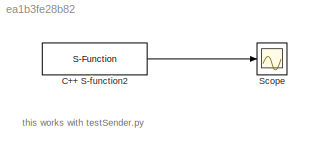
MODEL slx_ea1b3fe28b82
KIND model
BLOCK [S-Function] C++ S-function2
  EnableBusSupport = off
  FunctionName = yarpReadVars_sfun
  Parameters = '/testSender', '/sim/in','var1'
  Ports = [0, 1]
BLOCK [Scope] Scope
  Floating = off
  NumInputPorts = 1
  Ports = [1]
  ShowLegends = off
ANNOTATION (root): this works with testSender.py
LINE C++ S-function2:1 -> Scope:1
